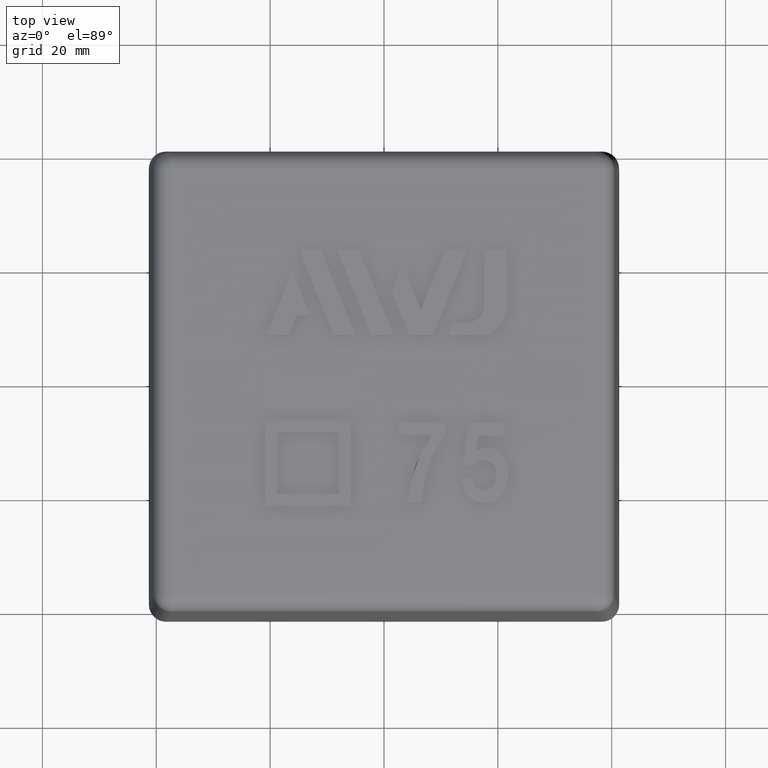
[diagram: clean part render]
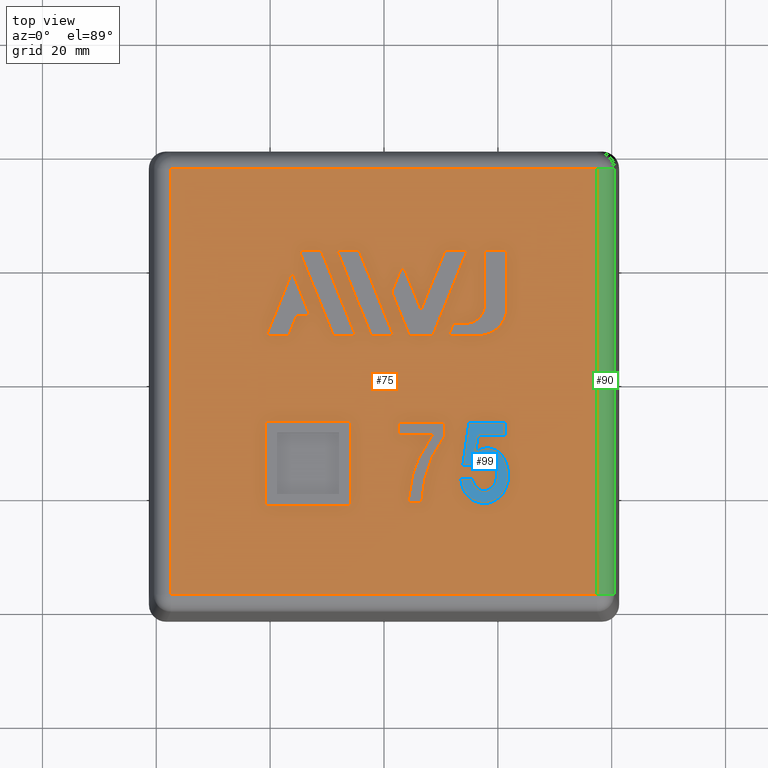
[diagram: same view with three faces highlighted in distinct colors, each labeled with its STEP entity id]
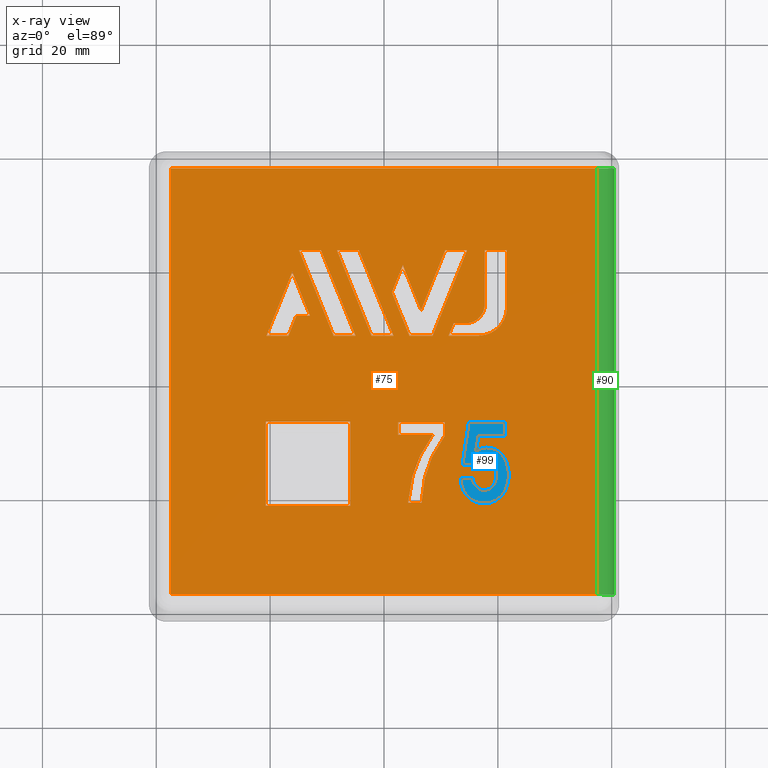
[diagram: x-ray of the same camera — body ghosted, the three highlighted faces saturated]
A machine part, top view with three faces highlighted in distinct colors.
The next image is the same camera in x-ray (body ghosted, the three faces saturated) — at least one of them is partly hidden behind the body in this view.
Their STEP definitions:

[orange] entity #75 — the highlighted planar face has unit normal (0, 0, 1).
#75 = ADVANCED_FACE( '', ( #161, #162, #163, #164, #165, #166, #167, #168, #169 ), #170, .T. );
#161 = FACE_BOUND( '', #341, .T. );
#162 = FACE_OUTER_BOUND( '', #342, .T. );
#163 = FACE_BOUND( '', #343, .T. );
#164 = FACE_BOUND( '', #344, .T. );
#165 = FACE_BOUND( '', #345, .T. );
#166 = FACE_BOUND( '', #346, .T. );
#167 = FACE_BOUND( '', #347, .T. );
#168 = FACE_BOUND( '', #348, .T. );
#169 = FACE_BOUND( '', #349, .T. );
#170 = PLANE( '', #350 );
#341 = EDGE_LOOP( '', ( #526, #527, #528, #529, #530, #531, #532 ) );
#342 = EDGE_LOOP( '', ( #533, #534, #535, #536 ) );
#343 = EDGE_LOOP( '', ( #537, #538, #539, #540, #541, #542, #543, #544 ) );
#344 = EDGE_LOOP( '', ( #545, #546, #547, #548, #549, #550, #551 ) );
#345 = EDGE_LOOP( '', ( #552, #553, #554, #555 ) );
#346 = EDGE_LOOP( '', ( #556, #557, #558, #559 ) );
#347 = EDGE_LOOP( '', ( #560, #561, #562, #563, #564 ) );
#348 = EDGE_LOOP( '', ( #565, #566, #567, #568 ) );
#349 = EDGE_LOOP( '', ( #569, #570, #571, #572, #573, #574, #575, #576, #577, #578 ) );
#350 = AXIS2_PLACEMENT_3D( '', #579, #580, #581 );
#526 = ORIENTED_EDGE( '', *, *, #1224, .T. );
#527 = ORIENTED_EDGE( '', *, *, #1225, .T. );
#528 = ORIENTED_EDGE( '', *, *, #1226, .T. );
#529 = ORIENTED_EDGE( '', *, *, #1227, .T. );
#530 = ORIENTED_EDGE( '', *, *, #1228, .T. );
#531 = ORIENTED_EDGE( '', *, *, #1229, .T. );
#532 = ORIENTED_EDGE( '', *, *, #1230, .T. );
#533 = ORIENTED_EDGE( '', *, *, #1231, .T. );
#534 = ORIENTED_EDGE( '', *, *, #1232, .T. );
#535 = ORIENTED_EDGE( '', *, *, #1233, .T. );
#536 = ORIENTED_EDGE( '', *, *, #1234, .T. );
#537 = ORIENTED_EDGE( '', *, *, #1235, .F. );
#538 = ORIENTED_EDGE( '', *, *, #1236, .F. );
#539 = ORIENTED_EDGE( '', *, *, #1237, .F. );
#540 = ORIENTED_EDGE( '', *, *, #1238, .F. );
#541 = ORIENTED_EDGE( '', *, *, #1239, .F. );
#542 = ORIENTED_EDGE( '', *, *, #1240, .F. );
#543 = ORIENTED_EDGE( '', *, *, #1241, .F. );
#544 = ORIENTED_EDGE( '', *, *, #1242, .F. );
#545 = ORIENTED_EDGE( '', *, *, #1243, .F. );
#546 = ORIENTED_EDGE( '', *, *, #1244, .F. );
#547 = ORIENTED_EDGE( '', *, *, #1245, .F. );
#548 = ORIENTED_EDGE( '', *, *, #1246, .F. );
#549 = ORIENTED_EDGE( '', *, *, #1247, .F. );
#550 = ORIENTED_EDGE( '', *, *, #1248, .F. );
#551 = ORIENTED_EDGE( '', *, *, #1249, .F. );
#552 = ORIENTED_EDGE( '', *, *, #1250, .F. );
#553 = ORIENTED_EDGE( '', *, *, #1251, .F. );
#554 = ORIENTED_EDGE( '', *, *, #1252, .F. );
#555 = ORIENTED_EDGE( '', *, *, #1253, .F. );
#556 = ORIENTED_EDGE( '', *, *, #1254, .F. );
#557 = ORIENTED_EDGE( '', *, *, #1255, .F. );
#558 = ORIENTED_EDGE( '', *, *, #1256, .F. );
#559 = ORIENTED_EDGE( '', *, *, #1257, .F. );
#560 = ORIENTED_EDGE( '', *, *, #1258, .F. );
#561 = ORIENTED_EDGE( '', *, *, #1259, .F. );
#562 = ORIENTED_EDGE( '', *, *, #1260, .F. );
#563 = ORIENTED_EDGE( '', *, *, #1261, .F. );
#564 = ORIENTED_EDGE( '', *, *, #1262, .F. );
#565 = ORIENTED_EDGE( '', *, *, #1263, .T. );
#566 = ORIENTED_EDGE( '', *, *, #1264, .T. );
#567 = ORIENTED_EDGE( '', *, *, #1265, .T. );
#568 = ORIENTED_EDGE( '', *, *, #1266, .T. );
#569 = ORIENTED_EDGE( '', *, *, #1267, .T. );
#570 = ORIENTED_EDGE( '', *, *, #1268, .T. );
#571 = ORIENTED_EDGE( '', *, *, #1269, .T. );
#572 = ORIENTED_EDGE( '', *, *, #1270, .T. );
#573 = ORIENTED_EDGE( '', *, *, #1271, .T. );
#574 = ORIENTED_EDGE( '', *, *, #1272, .T. );
#575 = ORIENTED_EDGE( '', *, *, #1273, .T. );
#576 = ORIENTED_EDGE( '', *, *, #1274, .T. );
#577 = ORIENTED_EDGE( '', *, *, #1275, .T. );
#578 = ORIENTED_EDGE( '', *, *, #1276, .T. );
#579 = CARTESIAN_POINT( '', ( -41.3000000000000, -41.3000000000000, 53.0000000000000 ) );
#580 = DIRECTION( '', ( 0.000000000000000, 0.000000000000000, 1.00000000000000 ) );
#581 = DIRECTION( '', ( 0.000000000000000, -1.00000000000000, 0.000000000000000 ) );
#1224 = EDGE_CURVE( '', #1431, #1432, #1433, .T. );
#1225 = EDGE_CURVE( '', #1432, #1434, #1435, .T. );
#1226 = EDGE_CURVE( '', #1434, #1436, #1437, .T. );
#1227 = EDGE_CURVE( '', #1436, #1438, #1439, .T. );
#1228 = EDGE_CURVE( '', #1438, #1440, #1441, .T. );
#1229 = EDGE_CURVE( '', #1440, #1442, #1443, .T. );
#1230 = EDGE_CURVE( '', #1442, #1431, #1444, .T. );
#1231 = EDGE_CURVE( '', #1445, #1446, #1447, .F. );
#1232 = EDGE_CURVE( '', #1446, #1448, #1449, .F. );
#1233 = EDGE_CURVE( '', #1448, #1450, #1451, .F. );
#1234 = EDGE_CURVE( '', #1450, #1445, #1452, .F. );
#1235 = EDGE_CURVE( '', #1453, #1454, #1455, .T. );
#1236 = EDGE_CURVE( '', #1456, #1453, #1457, .T. );
#1237 = EDGE_CURVE( '', #1458, #1456, #1459, .T. );
#1238 = EDGE_CURVE( '', #1460, #1458, #1461, .T. );
#1239 = EDGE_CURVE( '', #1462, #1460, #1463, .T. );
#1240 = EDGE_CURVE( '', #1464, #1462, #1465, .T. );
#1241 = EDGE_CURVE( '', #1466, #1464, #1467, .T. );
#1242 = EDGE_CURVE( '', #1454, #1466, #1468, .T. );
#1243 = EDGE_CURVE( '', #1469, #1470, #1471, .T. );
#1244 = EDGE_CURVE( '', #1472, #1469, #1473, .T. );
#1245 = EDGE_CURVE( '', #1474, #1472, #1475, .T. );
#1246 = EDGE_CURVE( '', #1476, #1474, #1477, .T. );
#1247 = EDGE_CURVE( '', #1478, #1476, #1479, .T. );
#1248 = EDGE_CURVE( '', #1480, #1478, #1481, .T. );
#1249 = EDGE_CURVE( '', #1470, #1480, #1482, .T. );
#1250 = EDGE_CURVE( '', #1483, #1484, #1485, .T. );
#1251 = EDGE_CURVE( '', #1486, #1483, #1487, .T. );
#1252 = EDGE_CURVE( '', #1488, #1486, #1489, .T. );
#1253 = EDGE_CURVE( '', #1484, #1488, #1490, .T. );
#1254 = EDGE_CURVE( '', #1491, #1492, #1493, .T. );
#1255 = EDGE_CURVE( '', #1494, #1491, #1495, .T. );
#1256 = EDGE_CURVE( '', #1496, #1494, #1497, .T. );
#1257 = EDGE_CURVE( '', #1492, #1496, #1498, .T. );
#1258 = EDGE_CURVE( '', #1499, #1500, #1501, .T. );
#1259 = EDGE_CURVE( '', #1502, #1499, #1503, .T. );
#1260 = EDGE_CURVE( '', #1504, #1502, #1505, .T. );
#1261 = EDGE_CURVE( '', #1506, #1504, #1507, .T. );
#1262 = EDGE_CURVE( '', #1500, #1506, #1508, .T. );
#1263 = EDGE_CURVE( '', #1509, #1510, #1511, .T. );
#1264 = EDGE_CURVE( '', #1510, #1512, #1513, .T. );
#1265 = EDGE_CURVE( '', #1512, #1514, #1515, .T. );
#1266 = EDGE_CURVE( '', #1514, #1509, #1516, .T. );
#1267 = EDGE_CURVE( '', #1517, #1518, #1519, .T. );
#1268 = EDGE_CURVE( '', #1518, #1520, #1521, .T. );
#1269 = EDGE_CURVE( '', #1520, #1522, #1523, .T. );
#1270 = EDGE_CURVE( '', #1522, #1524, #1525, .T. );
#1271 = EDGE_CURVE( '', #1524, #1526, #1527, .T. );
#1272 = EDGE_CURVE( '', #1526, #1528, #1529, .T. );
#1273 = EDGE_CURVE( '', #1528, #1530, #1531, .T. );
#1274 = EDGE_CURVE( '', #1530, #1532, #1533, .T. );
#1275 = EDGE_CURVE( '', #1532, #1534, #1535, .T. );
#1276 = EDGE_CURVE( '', #1534, #1517, #1536, .T. );
#1431 = VERTEX_POINT( '', #1772 );
#1432 = VERTEX_POINT( '', #1773 );
#1433 = B_SPLINE_CURVE_WITH_KNOTS( '', 2, ( #1774, #1775, #1776 ), .UNSPECIFIED., .F., .F., ( 3, 3 ), ( 8.00000000000000, 9.00000000000000 ), .UNSPECIFIED. );
#1434 = VERTEX_POINT( '', #1777 );
#1435 = B_SPLINE_CURVE_WITH_KNOTS( '', 2, ( #1778, #1779, #1780 ), .UNSPECIFIED., .F., .F., ( 3, 3 ), ( 0.000000000000000, 1.00000000000000 ), .UNSPECIFIED. );
#1436 = VERTEX_POINT( '', #1781 );
#1437 = B_SPLINE_CURVE_WITH_KNOTS( '', 2, ( #1782, #1783, #1784 ), .UNSPECIFIED., .F., .F., ( 3, 3 ), ( 1.00000000000000, 2.00000000000000 ), .UNSPECIFIED. );
#1438 = VERTEX_POINT( '', #1785 );
#1439 = B_SPLINE_CURVE_WITH_KNOTS( '', 2, ( #1786, #1787, #1788 ), .UNSPECIFIED., .F., .F., ( 3, 3 ), ( 2.00000000000000, 3.00000000000000 ), .UNSPECIFIED. );
#1440 = VERTEX_POINT( '', #1789 );
#1441 = B_SPLINE_CURVE_WITH_KNOTS( '', 2, ( #1790, #1791, #1792, #1793, #1794 ), .UNSPECIFIED., .F., .F., ( 3, 2, 3 ), ( 3.00000000000000, 4.00000000000000, 5.00000000000000 ), .UNSPECIFIED. );
#1442 = VERTEX_POINT( '', #1795 );
#1443 = B_SPLINE_CURVE_WITH_KNOTS( '', 2, ( #1796, #1797, #1798 ), .UNSPECIFIED., .F., .F., ( 3, 3 ), ( 5.00000000000000, 6.00000000000000 ), .UNSPECIFIED. );
#1444 = B_SPLINE_CURVE_WITH_KNOTS( '', 2, ( #1799, #1800, #1801, #1802, #1803 ), .UNSPECIFIED., .F., .F., ( 3, 2, 3 ), ( 6.00000000000000, 7.00000000000000, 8.00000000000000 ), .UNSPECIFIED. );
#1445 = VERTEX_POINT( '', #1804 );
#1446 = VERTEX_POINT( '', #1805 );
#1447 = LINE( '', #1806, #1807 );
#1448 = VERTEX_POINT( '', #1808 );
#1449 = LINE( '', #1809, #1810 );
#1450 = VERTEX_POINT( '', #1811 );
#1451 = LINE( '', #1812, #1813 );
#1452 = LINE( '', #1814, #1815 );
#1453 = VERTEX_POINT( '', #1816 );
#1454 = VERTEX_POINT( '', #1817 );
#1455 = LINE( '', #1818, #1819 );
#1456 = VERTEX_POINT( '', #1820 );
#1457 = LINE( '', #1821, #1822 );
#1458 = VERTEX_POINT( '', #1823 );
#1459 = LINE( '', #1824, #1825 );
#1460 = VERTEX_POINT( '', #1826 );
#1461 = CIRCLE( '', #1827, 5.00250000000000 );
#1462 = VERTEX_POINT( '', #1828 );
#1463 = LINE( '', #1829, #1830 );
#1464 = VERTEX_POINT( '', #1831 );
#1465 = LINE( '', #1832, #1833 );
#1466 = VERTEX_POINT( '', #1834 );
#1467 = LINE( '', #1835, #1836 );
#1468 = CIRCLE( '', #1837, 3.33500000000000 );
#1469 = VERTEX_POINT( '', #1838 );
#1470 = VERTEX_POINT( '', #1839 );
#1471 = LINE( '', #1840, #1841 );
#1472 = VERTEX_POINT( '', #1842 );
#1473 = LINE( '', #1843, #1844 );
#1474 = VERTEX_POINT( '', #1845 );
#1475 = LINE( '', #1846, #1847 );
#1476 = VERTEX_POINT( '', #1848 );
#1477 = LINE( '', #1849, #1850 );
#1478 = VERTEX_POINT( '', #1851 );
#1479 = LINE( '', #1852, #1853 );
#1480 = VERTEX_POINT( '', #1854 );
#1481 = LINE( '', #1855, #1856 );
#1482 = LINE( '', #1857, #1858 );
#1483 = VERTEX_POINT( '', #1859 );
#1484 = VERTEX_POINT( '', #1860 );
#1485 = LINE( '', #1861, #1862 );
#1486 = VERTEX_POINT( '', #1863 );
#1487 = LINE( '', #1864, #1865 );
#1488 = VERTEX_POINT( '', #1866 );
#1489 = LINE( '', #1867, #1868 );
#1490 = LINE( '', #1869, #1870 );
#1491 = VERTEX_POINT( '', #1871 );
#1492 = VERTEX_POINT( '', #1872 );
#1493 = LINE( '', #1873, #1874 );
#1494 = VERTEX_POINT( '', #1875 );
#1495 = LINE( '', #1876, #1877 );
#1496 = VERTEX_POINT( '', #1878 );
#1497 = LINE( '', #1879, #1880 );
#1498 = LINE( '', #1881, #1882 );
#1499 = VERTEX_POINT( '', #1883 );
#1500 = VERTEX_POINT( '', #1884 );
#1501 = LINE( '', #1885, #1886 );
#1502 = VERTEX_POINT( '', #1887 );
#1503 = LINE( '', #1888, #1889 );
#1504 = VERTEX_POINT( '', #1890 );
#1505 = LINE( '', #1891, #1892 );
#1506 = VERTEX_POINT( '', #1893 );
#1507 = LINE( '', #1894, #1895 );
#1508 = LINE( '', #1896, #1897 );
#1509 = VERTEX_POINT( '', #1898 );
#1510 = VERTEX_POINT( '', #1899 );
#1511 = B_SPLINE_CURVE_WITH_KNOTS( '', 2, ( #1900, #1901, #1902 ), .UNSPECIFIED., .F., .F., ( 3, 3 ), ( 3.00000000000000, 4.00000000000000 ), .UNSPECIFIED. );
#1512 = VERTEX_POINT( '', #1903 );
#1513 = B_SPLINE_CURVE_WITH_KNOTS( '', 2, ( #1904, #1905, #1906 ), .UNSPECIFIED., .F., .F., ( 3, 3 ), ( 0.000000000000000, 1.00000000000000 ), .UNSPECIFIED. );
#1514 = VERTEX_POINT( '', #1907 );
#1515 = B_SPLINE_CURVE_WITH_KNOTS( '', 2, ( #1908, #1909, #1910 ), .UNSPECIFIED., .F., .F., ( 3, 3 ), ( 1.00000000000000, 2.00000000000000 ), .UNSPECIFIED. );
#1516 = B_SPLINE_CURVE_WITH_KNOTS( '', 2, ( #1911, #1912, #1913 ), .UNSPECIFIED., .F., .F., ( 3, 3 ), ( 2.00000000000000, 3.00000000000000 ), .UNSPECIFIED. );
#1517 = VERTEX_POINT( '', #1914 );
#1518 = VERTEX_POINT( '', #1915 );
#1519 = B_SPLINE_CURVE_WITH_KNOTS( '', 2, ( #1916, #1917, #1918, #1919, #1920, #1921, #1922, #1923, #1924, #1925, #1926, #1927, #1928 ), .UNSPECIFIED., .F., .F., ( 3, 2, 2, 2, 2, 2, 3 ), ( 14.0000000000000, 15.0000000000000, 16.0000000000000, 17.0000000000000, 18.0000000000000, 19.0000000000000, 20.0000000000000 ), .UNSPECIFIED. );
#1520 = VERTEX_POINT( '', #1929 );
#1521 = B_SPLINE_CURVE_WITH_KNOTS( '', 2, ( #1930, #1931, #1932 ), .UNSPECIFIED., .F., .F., ( 3, 3 ), ( 0.000000000000000, 1.00000000000000 ), .UNSPECIFIED. );
#1522 = VERTEX_POINT( '', #1933 );
#1523 = B_SPLINE_CURVE_WITH_KNOTS( '', 2, ( #1934, #1935, #1936 ), .UNSPECIFIED., .F., .F., ( 3, 3 ), ( 1.00000000000000, 2.00000000000000 ), .UNSPECIFIED. );
#1524 = VERTEX_POINT( '', #1937 );
#1525 = B_SPLINE_CURVE_WITH_KNOTS( '', 2, ( #1938, #1939, #1940, #1941, #1942, #1943, #1944, #1945, #1946, #1947, #1948, #1949, #1950 ), .UNSPECIFIED., .F., .F., ( 3, 2, 2, 2, 2, 2, 3 ), ( 2.00000000000000, 3.00000000000000, 4.00000000000000, 5.00000000000000, 6.00000000000000, 7.00000000000000, 8.00000000000000 ), .UNSPECIFIED. );
#1526 = VERTEX_POINT( '', #1951 );
#1527 = B_SPLINE_CURVE_WITH_KNOTS( '', 2, ( #1952, #1953, #1954 ), .UNSPECIFIED., .F., .F., ( 3, 3 ), ( 8.00000000000000, 9.00000000000000 ), .UNSPECIFIED. );
#1528 = VERTEX_POINT( '', #1955 );
#1529 = B_SPLINE_CURVE_WITH_KNOTS( '', 2, ( #1956, #1957, #1958 ), .UNSPECIFIED., .F., .F., ( 3, 3 ), ( 9.00000000000000, 10.0000000000000 ), .UNSPECIFIED. );
#1530 = VERTEX_POINT( '', #1959 );
#1531 = B_SPLINE_CURVE_WITH_KNOTS( '', 2, ( #1960, #1961, #1962 ), .UNSPECIFIED., .F., .F., ( 3, 3 ), ( 10.0000000000000, 11.0000000000000 ), .UNSPECIFIED. );
#1532 = VERTEX_POINT( '', #1963 );
#1533 = B_SPLINE_CURVE_WITH_KNOTS( '', 2, ( #1964, #1965, #1966 ), .UNSPECIFIED., .F., .F., ( 3, 3 ), ( 11.0000000000000, 12.0000000000000 ), .UNSPECIFIED. );
#1534 = VERTEX_POINT( '', #1967 );
#1535 = B_SPLINE_CURVE_WITH_KNOTS( '', 2, ( #1968, #1969, #1970 ), .UNSPECIFIED., .F., .F., ( 3, 3 ), ( 12.0000000000000, 13.0000000000000 ), .UNSPECIFIED. );
#1536 = B_SPLINE_CURVE_WITH_KNOTS( '', 2, ( #1971, #1972, #1973 ), .UNSPECIFIED., .F., .F., ( 3, 3 ), ( 13.0000000000000, 14.0000000000000 ), .UNSPECIFIED. );
#1772 = CARTESIAN_POINT( '', ( 8.51023806818178, -9.42264545454547, 53.0000000000000 ) );
#1773 = CARTESIAN_POINT( '', ( 2.51023806818178, -9.42264545454547, 53.0000000000000 ) );
#1774 = CARTESIAN_POINT( '', ( 8.51023806818178, -9.42264545454547, 53.0000000000000 ) );
#1775 = CARTESIAN_POINT( '', ( 5.51023806818178, -9.42264545454547, 53.0000000000000 ) );
#1776 = CARTESIAN_POINT( '', ( 2.51023806818178, -9.42264545454547, 53.0000000000000 ) );
#1777 = CARTESIAN_POINT( '', ( 2.51023806818178, -7.17264545454547, 53.0000000000000 ) );
#1778 = CARTESIAN_POINT( '', ( 2.51023806818178, -9.42264545454547, 53.0000000000000 ) );
#1779 = CARTESIAN_POINT( '', ( 2.51023806818178, -8.29764545454547, 53.0000000000000 ) );
#1780 = CARTESIAN_POINT( '', ( 2.51023806818178, -7.17264545454547, 53.0000000000000 ) );
#1781 = CARTESIAN_POINT( '', ( 10.6920562500000, -7.17264545454547, 53.0000000000000 ) );
#1782 = CARTESIAN_POINT( '', ( 2.51023806818178, -7.17264545454547, 53.0000000000000 ) );
#1783 = CARTESIAN_POINT( '', ( 6.60114715909087, -7.17264545454547, 53.0000000000000 ) );
#1784 = CARTESIAN_POINT( '', ( 10.6920562500000, -7.17264545454547, 53.0000000000000 ) );
#1785 = CARTESIAN_POINT( '', ( 10.6920562500000, -9.55900909090911, 53.0000000000000 ) );
#1786 = CARTESIAN_POINT( '', ( 10.6920562500000, -7.17264545454547, 53.0000000000000 ) );
#1787 = CARTESIAN_POINT( '', ( 10.6920562500000, -8.36582727272729, 53.0000000000000 ) );
#1788 = CARTESIAN_POINT( '', ( 10.6920562500000, -9.55900909090911, 53.0000000000000 ) );
#1789 = CARTESIAN_POINT( '', ( 6.60114715909087, -21.3544636363637, 53.0000000000000 ) );
#1790 = CARTESIAN_POINT( '', ( 10.6920562500000, -9.55900909090911, 53.0000000000000 ) );
#1791 = CARTESIAN_POINT( '', ( 8.57841988636359, -12.4908272727273, 53.0000000000000 ) );
#1792 = CARTESIAN_POINT( '', ( 7.69205624999996, -15.1499181818182, 53.0000000000000 ) );
#1793 = CARTESIAN_POINT( '', ( 6.80569261363632, -17.8090090909091, 53.0000000000000 ) );
#1794 = CARTESIAN_POINT( '', ( 6.60114715909087, -21.3544636363637, 53.0000000000000 ) );
#1795 = CARTESIAN_POINT( '', ( 4.21478352272723, -21.3544636363637, 53.0000000000000 ) );
#1796 = CARTESIAN_POINT( '', ( 6.60114715909087, -21.3544636363637, 53.0000000000000 ) );
#1797 = CARTESIAN_POINT( '', ( 5.40796534090905, -21.3544636363637, 53.0000000000000 ) );
#1798 = CARTESIAN_POINT( '', ( 4.21478352272723, -21.3544636363637, 53.0000000000000 ) );
#1799 = CARTESIAN_POINT( '', ( 4.21478352272723, -21.3544636363637, 53.0000000000000 ) );
#1800 = CARTESIAN_POINT( '', ( 4.62387443181814, -17.2635545454546, 53.0000000000000 ) );
#1801 = CARTESIAN_POINT( '', ( 5.58261478158968, -14.7424225145738, 53.0000000000000 ) );
#1802 = CARTESIAN_POINT( '', ( 6.46478352272723, -12.4226454545455, 53.0000000000000 ) );
#1803 = CARTESIAN_POINT( '', ( 8.51023806818178, -9.42264545454547, 53.0000000000000 ) );
#1804 = CARTESIAN_POINT( '', ( -37.4267897694574, -37.4267897694574, 53.0000000000000 ) );
#1805 = CARTESIAN_POINT( '', ( 37.4267897694574, -37.4267897694574, 53.0000000000000 ) );
#1806 = CARTESIAN_POINT( '', ( 37.3753384733353, -37.4267897694574, 53.0000000000000 ) );
#1807 = VECTOR( '', #2398, 1000.00000000000 );
#1808 = CARTESIAN_POINT( '', ( 37.4267897694574, 37.4267897694574, 53.0000000000000 ) );
#1809 = CARTESIAN_POINT( '', ( 37.4267897694574, 37.3753384733353, 53.0000000000000 ) );
#1810 = VECTOR( '', #2399, 1000.00000000000 );
#1811 = CARTESIAN_POINT( '', ( -37.4267897694574, 37.4267897694574, 53.0000000000000 ) );
#1812 = CARTESIAN_POINT( '', ( -37.3753384733353, 37.4267897694574, 53.0000000000000 ) );
#1813 = VECTOR( '', #2400, 1000.00000000000 );
#1814 = CARTESIAN_POINT( '', ( -37.4267897694574, -37.3753384733353, 53.0000000000000 ) );
#1815 = VECTOR( '', #2401, 1000.00000000000 );
#1816 = CARTESIAN_POINT( '', ( 17.6868131700000, 23.0246711800000, 53.0000000000000 ) );
#1817 = CARTESIAN_POINT( '', ( 17.6868131700000, 13.5439281775000, 53.0000000000000 ) );
#1818 = CARTESIAN_POINT( '', ( 17.6868131700000, 23.0246711800000, 53.0000000000000 ) );
#1819 = VECTOR( '', #2402, 1000.00000000000 );
#1820 = CARTESIAN_POINT( '', ( 21.6060151250000, 23.0246711800000, 53.0000000000000 ) );
#1821 = CARTESIAN_POINT( '', ( 21.6060151250000, 23.0246711800000, 53.0000000000000 ) );
#1822 = VECTOR( '', #2403, 1000.00000000000 );
#1823 = CARTESIAN_POINT( '', ( 21.6060151250000, 13.0306500000000, 53.0000000000000 ) );
#1824 = CARTESIAN_POINT( '', ( 21.6060151250000, 13.0306500000000, 53.0000000000000 ) );
#1825 = VECTOR( '', #2404, 1000.00000000000 );
#1826 = CARTESIAN_POINT( '', ( 16.6035151250000, 8.02814999999999, 53.0000000000000 ) );
#1827 = AXIS2_PLACEMENT_3D( '', #2405, #2406, #2407 );
#1828 = CARTESIAN_POINT( '', ( 11.3405799725000, 8.02814999999999, 53.0000000000000 ) );
#1829 = CARTESIAN_POINT( '', ( 11.3405799725000, 8.02814999999999, 53.0000000000000 ) );
#1830 = VECTOR( '', #2408, 1000.00000000000 );
#1831 = CARTESIAN_POINT( '', ( 12.2216702975000, 10.2089281775000, 53.0000000000000 ) );
#1832 = CARTESIAN_POINT( '', ( 12.2216702975000, 10.2089281775000, 53.0000000000000 ) );
#1833 = VECTOR( '', #2409, 1000.00000000000 );
#1834 = CARTESIAN_POINT( '', ( 14.3518131700000, 10.2089281775000, 53.0000000000000 ) );
#1835 = CARTESIAN_POINT( '', ( 14.3518131700000, 10.2089281775000, 53.0000000000000 ) );
#1836 = VECTOR( '', #2410, 1000.00000000000 );
#1837 = AXIS2_PLACEMENT_3D( '', #2411, #2412, #2413 );
#1838 = CARTESIAN_POINT( '', ( 14.6109159900000, 23.0246711800000, 53.0000000000000 ) );
#1839 = CARTESIAN_POINT( '', ( 10.7356626650000, 23.0246711800000, 53.0000000000000 ) );
#1840 = CARTESIAN_POINT( '', ( 14.6109159900000, 23.0246711800000, 53.0000000000000 ) );
#1841 = VECTOR( '', #2414, 1000.00000000000 );
#1842 = CARTESIAN_POINT( '', ( 8.55223149499995, 8.02814999999999, 53.0000000000000 ) );
#1843 = CARTESIAN_POINT( '', ( 8.55223149499995, 8.02814999999999, 53.0000000000000 ) );
#1844 = VECTOR( '', #2415, 1000.00000000000 );
#1845 = CARTESIAN_POINT( '', ( 4.45572926749997, 8.02814999999999, 53.0000000000000 ) );
#1846 = CARTESIAN_POINT( '', ( 4.45572926749997, 8.02814999999999, 53.0000000000000 ) );
#1847 = VECTOR( '', #2416, 1000.00000000000 );
#1848 = CARTESIAN_POINT( '', ( 1.36830632749998, 15.6684565775000, 53.0000000000000 ) );
#1849 = CARTESIAN_POINT( '', ( 1.36830632749998, 15.6684565775000, 53.0000000000000 ) );
#1850 = VECTOR( '', #2417, 1000.00000000000 );
#1851 = CARTESIAN_POINT( '', ( 3.30593298999998, 20.4650903625000, 53.0000000000000 ) );
#1852 = CARTESIAN_POINT( '', ( 3.30593298999998, 20.4650903625000, 53.0000000000000 ) );
#1853 = VECTOR( '', #2418, 1000.00000000000 );
#1854 = CARTESIAN_POINT( '', ( 6.50355433499998, 12.5510653275000, 53.0000000000000 ) );
#1855 = CARTESIAN_POINT( '', ( 6.50355433499998, 12.5510653275000, 53.0000000000000 ) );
#1856 = VECTOR( '', #2419, 1000.00000000000 );
#1857 = CARTESIAN_POINT( '', ( 10.7356626650000, 23.0246711800000, 53.0000000000000 ) );
#1858 = VECTOR( '', #2420, 1000.00000000000 );
#1859 = CARTESIAN_POINT( '', ( 1.66738245749997, 8.02814999999999, 53.0000000000000 ) );
#1860 = CARTESIAN_POINT( '', ( -4.39225418000003, 23.0246711800000, 53.0000000000000 ) );
#1861 = CARTESIAN_POINT( '', ( 1.66738245749997, 8.02814999999999, 53.0000000000000 ) );
#1862 = VECTOR( '', #2421, 1000.00000000000 );
#1863 = CARTESIAN_POINT( '', ( -2.20782084250003, 8.02814999999999, 53.0000000000000 ) );
#1864 = CARTESIAN_POINT( '', ( -2.20782084250003, 8.02814999999999, 53.0000000000000 ) );
#1865 = VECTOR( '', #2422, 1000.00000000000 );
#1866 = CARTESIAN_POINT( '', ( -8.26745581250001, 23.0246711800000, 53.0000000000000 ) );
#1867 = CARTESIAN_POINT( '', ( -8.26745581250001, 23.0246711800000, 53.0000000000000 ) );
#1868 = VECTOR( '', #2423, 1000.00000000000 );
#1869 = CARTESIAN_POINT( '', ( -4.39225418000003, 23.0246711800000, 53.0000000000000 ) );
#1870 = VECTOR( '', #2424, 1000.00000000000 );
#1871 = CARTESIAN_POINT( '', ( -4.99626770250003, 8.02814999999999, 53.0000000000000 ) );
#1872 = CARTESIAN_POINT( '', ( -11.0559043400000, 23.0246711800000, 53.0000000000000 ) );
#1873 = CARTESIAN_POINT( '', ( -4.99626770250003, 8.02814999999999, 53.0000000000000 ) );
#1874 = VECTOR( '', #2425, 1000.00000000000 );
#1875 = CARTESIAN_POINT( '', ( -8.87119419750004, 8.02814999999998, 53.0000000000000 ) );
#1876 = CARTESIAN_POINT( '', ( -8.87119419750004, 8.02814999999999, 53.0000000000000 ) );
#1877 = VECTOR( '', #2426, 1000.00000000000 );
#1878 = CARTESIAN_POINT( '', ( -14.9299787425000, 23.0246711800000, 53.0000000000000 ) );
#1879 = CARTESIAN_POINT( '', ( -14.9299787425000, 23.0246711800000, 53.0000000000000 ) );
#1880 = VECTOR( '', #2427, 1000.00000000000 );
#1881 = CARTESIAN_POINT( '', ( -11.0559043400000, 23.0246711800000, 53.0000000000000 ) );
#1882 = VECTOR( '', #2428, 1000.00000000000 );
#1883 = CARTESIAN_POINT( '', ( -20.6574894000000, 8.02814999999999, 53.0000000000000 ) );
#1884 = CARTESIAN_POINT( '', ( -16.7834149975000, 8.02814999999999, 53.0000000000000 ) );
#1885 = CARTESIAN_POINT( '', ( -20.6574894000000, 8.02814999999999, 53.0000000000000 ) );
#1886 = VECTOR( '', #2429, 1000.00000000000 );
#1887 = CARTESIAN_POINT( '', ( -16.1152060600000, 19.2721458550000, 53.0000000000000 ) );
#1888 = CARTESIAN_POINT( '', ( -16.1152060600000, 19.2721458550000, 53.0000000000000 ) );
#1889 = VECTOR( '', #2430, 1000.00000000000 );
#1890 = CARTESIAN_POINT( '', ( -12.9731841675000, 11.4917742800000, 53.0000000000000 ) );
#1891 = CARTESIAN_POINT( '', ( -12.9731841675000, 11.4917742800000, 53.0000000000000 ) );
#1892 = VECTOR( '', #2431, 1000.00000000000 );
#1893 = CARTESIAN_POINT( '', ( -15.3830018075000, 11.4917742800000, 53.0000000000000 ) );
#1894 = CARTESIAN_POINT( '', ( -15.3830018075000, 11.4917742800000, 53.0000000000000 ) );
#1895 = VECTOR( '', #2432, 1000.00000000000 );
#1896 = CARTESIAN_POINT( '', ( -16.7834149975000, 8.02814999999999, 53.0000000000000 ) );
#1897 = VECTOR( '', #2433, 1000.00000000000 );
#1898 = CARTESIAN_POINT( '', ( -5.87612556818186, -21.8999181818182, 53.0000000000000 ) );
#1899 = CARTESIAN_POINT( '', ( -20.8079437500000, -21.8999181818182, 53.0000000000000 ) );
#1900 = CARTESIAN_POINT( '', ( -5.87612556818186, -21.8999181818182, 53.0000000000000 ) );
#1901 = CARTESIAN_POINT( '', ( -13.3420346590910, -21.8999181818182, 53.0000000000000 ) );
#1902 = CARTESIAN_POINT( '', ( -20.8079437500000, -21.8999181818182, 53.0000000000000 ) );
#1903 = CARTESIAN_POINT( '', ( -20.8079437500000, -7.03628181818184, 53.0000000000000 ) );
#1904 = CARTESIAN_POINT( '', ( -20.8079437500000, -21.8999181818182, 53.0000000000000 ) );
#1905 = CARTESIAN_POINT( '', ( -20.8079437500000, -14.4681000000000, 53.0000000000000 ) );
#1906 = CARTESIAN_POINT( '', ( -20.8079437500000, -7.03628181818184, 53.0000000000000 ) );
#1907 = CARTESIAN_POINT( '', ( -5.87612556818186, -7.03628181818184, 53.0000000000000 ) );
#1908 = CARTESIAN_POINT( '', ( -20.8079437500000, -7.03628181818184, 53.0000000000000 ) );
#1909 = CARTESIAN_POINT( '', ( -13.3420346590910, -7.03628181818184, 53.0000000000000 ) );
#1910 = CARTESIAN_POINT( '', ( -5.87612556818186, -7.03628181818184, 53.0000000000000 ) );
#1911 = CARTESIAN_POINT( '', ( -5.87612556818186, -7.03628181818184, 53.0000000000000 ) );
#1912 = CARTESIAN_POINT( '', ( -5.87612556818186, -14.4681000000000, 53.0000000000000 ) );
#1913 = CARTESIAN_POINT( '', ( -5.87612556818186, -21.8999181818182, 53.0000000000000 ) );
#1914 = CARTESIAN_POINT( '', ( 16.0784198863636, -12.3544636363637, 53.0000000000000 ) );
#1915 = CARTESIAN_POINT( '', ( 14.5555955403946, -20.0101933844586, 53.0000000000000 ) );
#1916 = CARTESIAN_POINT( '', ( 16.0784198863636, -12.3544636363637, 53.0000000000000 ) );
#1917 = CARTESIAN_POINT( '', ( 18.1920562500000, -11.0590090909091, 53.0000000000000 ) );
#1918 = CARTESIAN_POINT( '', ( 19.9620041365084, -12.2902771858715, 53.0000000000000 ) );
#1919 = CARTESIAN_POINT( '', ( 21.3284198863636, -13.2408272727273, 53.0000000000000 ) );
#1920 = CARTESIAN_POINT( '', ( 21.7375107954545, -15.2181000000000, 53.0000000000000 ) );
#1921 = CARTESIAN_POINT( '', ( 22.1466017045454, -17.1953727272727, 53.0000000000000 ) );
#1922 = CARTESIAN_POINT( '', ( 21.3615375313311, -18.9150371066947, 53.0000000000000 ) );
#1923 = CARTESIAN_POINT( '', ( 20.7147835227272, -20.3317363636364, 53.0000000000000 ) );
#1924 = CARTESIAN_POINT( '', ( 19.4125896183657, -21.0004305307410, 53.0000000000000 ) );
#1925 = CARTESIAN_POINT( '', ( 18.1920562500000, -21.6271909090909, 53.0000000000000 ) );
#1926 = CARTESIAN_POINT( '', ( 16.8939793269230, -21.3675755244755, 53.0000000000000 ) );
#1927 = CARTESIAN_POINT( '', ( 15.4647835227272, -21.0817363636364, 53.0000000000000 ) );
#1928 = CARTESIAN_POINT( '', ( 14.5555955403946, -20.0101933844586, 53.0000000000000 ) );
#1929 = CARTESIAN_POINT( '', ( 13.4875107954545, -17.0590090909091, 53.0000000000000 ) );
#1930 = CARTESIAN_POINT( '', ( 14.5555955403946, -20.0101933844586, 53.0000000000000 ) );
#1931 = CARTESIAN_POINT( '', ( 13.5556926136363, -18.8317363636364, 53.0000000000000 ) );
#1932 = CARTESIAN_POINT( '', ( 13.4875107954545, -17.0590090909091, 53.0000000000000 ) );
#1933 = CARTESIAN_POINT( '', ( 15.4647835227272, -17.0590090909091, 53.0000000000000 ) );
#1934 = CARTESIAN_POINT( '', ( 13.4875107954545, -17.0590090909091, 53.0000000000000 ) );
#1935 = CARTESIAN_POINT( '', ( 14.4761471590909, -17.0590090909091, 53.0000000000000 ) );
#1936 = CARTESIAN_POINT( '', ( 15.4647835227272, -17.0590090909091, 53.0000000000000 ) );
#1937 = CARTESIAN_POINT( '', ( 15.9420562500000, -14.7408272727273, 53.0000000000000 ) );
#1938 = CARTESIAN_POINT( '', ( 15.4647835227272, -17.0590090909091, 53.0000000000000 ) );
#1939 = CARTESIAN_POINT( '', ( 15.6693289772727, -18.1499181818182, 53.0000000000000 ) );
#1940 = CARTESIAN_POINT( '', ( 16.4322779275018, -18.7470086646062, 53.0000000000000 ) );
#1941 = CARTESIAN_POINT( '', ( 17.2375107954545, -19.3771909090909, 53.0000000000000 ) );
#1942 = CARTESIAN_POINT( '', ( 18.0625738736715, -19.1271717944797, 53.0000000000000 ) );
#1943 = CARTESIAN_POINT( '', ( 19.4875107954545, -18.6953727272727, 53.0000000000000 ) );
#1944 = CARTESIAN_POINT( '', ( 19.7209241745283, -16.9947895368782, 53.0000000000000 ) );
#1945 = CARTESIAN_POINT( '', ( 19.9647835227272, -15.2181000000000, 53.0000000000000 ) );
#1946 = CARTESIAN_POINT( '', ( 18.7375107954545, -14.2635545454546, 53.0000000000000 ) );
#1947 = CARTESIAN_POINT( '', ( 18.1238744318181, -13.7862818181818, 53.0000000000000 ) );
#1948 = CARTESIAN_POINT( '', ( 17.3056926136363, -13.9226454545455, 53.0000000000000 ) );
#1949 = CARTESIAN_POINT( '', ( 16.4875107954545, -14.0590090909091, 53.0000000000000 ) );
#1950 = CARTESIAN_POINT( '', ( 15.9420562500000, -14.7408272727273, 53.0000000000000 ) );
#1951 = CARTESIAN_POINT( '', ( 13.8284198863636, -14.7408272727273, 53.0000000000000 ) );
#1952 = CARTESIAN_POINT( '', ( 15.9420562500000, -14.7408272727273, 53.0000000000000 ) );
#1953 = CARTESIAN_POINT( '', ( 14.8852380681818, -14.7408272727273, 53.0000000000000 ) );
#1954 = CARTESIAN_POINT( '', ( 13.8284198863636, -14.7408272727273, 53.0000000000000 ) );
#1955 = CARTESIAN_POINT( '', ( 14.9193289772727, -7.24082727272729, 53.0000000000000 ) );
#1956 = CARTESIAN_POINT( '', ( 13.8284198863636, -14.7408272727273, 53.0000000000000 ) );
#1957 = CARTESIAN_POINT( '', ( 14.3738744318181, -10.9908272727273, 53.0000000000000 ) );
#1958 = CARTESIAN_POINT( '', ( 14.9193289772727, -7.24082727272729, 53.0000000000000 ) );
#1959 = CARTESIAN_POINT( '', ( 21.2602380681818, -7.24082727272729, 53.0000000000000 ) );
#1960 = CARTESIAN_POINT( '', ( 14.9193289772727, -7.24082727272729, 53.0000000000000 ) );
#1961 = CARTESIAN_POINT( '', ( 18.0897835227272, -7.24082727272729, 53.0000000000000 ) );
#1962 = CARTESIAN_POINT( '', ( 21.2602380681818, -7.24082727272729, 53.0000000000000 ) );
#1963 = CARTESIAN_POINT( '', ( 21.2602380681818, -9.55900909090911, 53.0000000000000 ) );
#1964 = CARTESIAN_POINT( '', ( 21.2602380681818, -7.24082727272729, 53.0000000000000 ) );
#1965 = CARTESIAN_POINT( '', ( 21.2602380681818, -8.39991818181820, 53.0000000000000 ) );
#1966 = CARTESIAN_POINT( '', ( 21.2602380681818, -9.55900909090911, 53.0000000000000 ) );
#1967 = CARTESIAN_POINT( '', ( 16.5556926136363, -9.55900909090911, 53.0000000000000 ) );
#1968 = CARTESIAN_POINT( '', ( 21.2602380681818, -9.55900909090911, 53.0000000000000 ) );
#1969 = CARTESIAN_POINT( '', ( 18.9079653409091, -9.55900909090911, 53.0000000000000 ) );
#1970 = CARTESIAN_POINT( '', ( 16.5556926136363, -9.55900909090911, 53.0000000000000 ) );
#1971 = CARTESIAN_POINT( '', ( 16.5556926136363, -9.55900909090911, 53.0000000000000 ) );
#1972 = CARTESIAN_POINT( '', ( 16.3170562500000, -10.9567363636364, 53.0000000000000 ) );
#1973 = CARTESIAN_POINT( '', ( 16.0784198863636, -12.3544636363637, 53.0000000000000 ) );
#2398 = DIRECTION( '', ( -1.00000000000000, 0.000000000000000, 0.000000000000000 ) );
#2399 = DIRECTION( '', ( 0.000000000000000, -1.00000000000000, 0.000000000000000 ) );
#2400 = DIRECTION( '', ( 1.00000000000000, 0.000000000000000, 0.000000000000000 ) );
#2401 = DIRECTION( '', ( 0.000000000000000, 1.00000000000000, 0.000000000000000 ) );
#2402 = DIRECTION( '', ( -2.22044604925031E-016, -1.00000000000000, -2.71917234023173E-032 ) );
#2403 = DIRECTION( '', ( -1.00000000000000, -1.66533453693774E-016, -1.22460635382238E-016 ) );
#2404 = DIRECTION( '', ( 2.22044604925031E-016, 1.00000000000000, 2.71917234023173E-032 ) );
#2405 = CARTESIAN_POINT( '', ( 16.6035151250000, 13.0306500000000, 53.0000000000000 ) );
#2406 = DIRECTION( '', ( -1.22460635382238E-016, 6.99949108067063E-048, 1.00000000000000 ) );
#2407 = DIRECTION( '', ( 1.00000000000000, 2.89120579329468E-016, 1.22460635382238E-016 ) );
#2408 = DIRECTION( '', ( 1.00000000000000, 2.22044604925031E-016, 1.22460635382238E-016 ) );
#2409 = DIRECTION( '', ( -0.374606136016172, -0.927184039368147, -4.58745054346254E-017 ) );
#2410 = DIRECTION( '', ( -1.00000000000000, -2.77555756156289E-016, -1.22460635382238E-016 ) );
#2411 = CARTESIAN_POINT( '', ( 14.3518131700000, 13.5439281775000, 53.0000000000000 ) );
#2412 = DIRECTION( '', ( 1.22460635382238E-016, 0.000000000000000, -1.00000000000000 ) );
#2413 = DIRECTION( '', ( 1.00000000000000, 0.000000000000000, 1.22460635382238E-016 ) );
#2414 = DIRECTION( '', ( -1.00000000000000, 0.000000000000000, -1.22460635382238E-016 ) );
#2415 = DIRECTION( '', ( 0.374590469627020, 0.927190368837278, 4.58725869186557E-017 ) );
#2416 = DIRECTION( '', ( 1.00000000000000, 5.55111512312578E-017, 1.22460635382238E-016 ) );
#2417 = DIRECTION( '', ( 0.374662791989133, -0.927161146888127, 4.58814435610724E-017 ) );
#2418 = DIRECTION( '', ( -0.374550228315492, -0.927206625552694, -4.58676589420774E-017 ) );
#2419 = DIRECTION( '', ( -0.374621466961798, 0.927177845125405, -4.58763828719678E-017 ) );
#2420 = DIRECTION( '', ( -0.374644407000048, -0.927168575990139, -4.58791921236276E-017 ) );
#2421 = DIRECTION( '', ( -0.374641075834904, 0.927169922019295, -4.58787841870275E-017 ) );
#2422 = DIRECTION( '', ( 1.00000000000000, 0.000000000000000, 1.22460635382238E-016 ) );
#2423 = DIRECTION( '', ( 0.374640987210496, -0.927169957829710, 4.58787733340261E-017 ) );
#2424 = DIRECTION( '', ( -1.00000000000000, 0.000000000000000, -1.22460635382238E-016 ) );
#2425 = DIRECTION( '', ( -0.374641075834905, 0.927169922019295, -4.58787841870275E-017 ) );
#2426 = DIRECTION( '', ( 1.00000000000000, 0.000000000000000, 1.22460635382238E-016 ) );
#2427 = DIRECTION( '', ( 0.374595787424495, -0.927188220397468, 4.58732381395133E-017 ) );
#2428 = DIRECTION( '', ( -1.00000000000000, 0.000000000000000, -1.22460635382238E-016 ) );
#2429 = DIRECTION( '', ( 1.00000000000000, 0.000000000000000, 1.22460635382238E-016 ) );
#2430 = DIRECTION( '', ( -0.374565060835224, -0.927200633736574, -4.58694753418681E-017 ) );
#2431 = DIRECTION( '', ( -0.374457798873769, 0.927243957576760, -4.58563399739159E-017 ) );
#2432 = DIRECTION( '', ( 1.00000000000000, 0.000000000000000, 1.22460635382238E-016 ) );
#2433 = DIRECTION( '', ( 0.374840859640758, 0.927089170438194, 4.59032498388314E-017 ) );

[blue] entity #99 — the highlighted planar face has unit normal (0, 0, 1).
#99 = ADVANCED_FACE( '', ( #218 ), #219, .T. );
#218 = FACE_OUTER_BOUND( '', #401, .T. );
#219 = PLANE( '', #402 );
#401 = EDGE_LOOP( '', ( #767, #768, #769, #770, #771, #772, #773, #774, #775, #776 ) );
#402 = AXIS2_PLACEMENT_3D( '', #777, #778, #779 );
#767 = ORIENTED_EDGE( '', *, *, #1286, .F. );
#768 = ORIENTED_EDGE( '', *, *, #1284, .F. );
#769 = ORIENTED_EDGE( '', *, *, #1282, .F. );
#770 = ORIENTED_EDGE( '', *, *, #1332, .F. );
#771 = ORIENTED_EDGE( '', *, *, #1333, .F. );
#772 = ORIENTED_EDGE( '', *, *, #1334, .F. );
#773 = ORIENTED_EDGE( '', *, *, #1335, .F. );
#774 = ORIENTED_EDGE( '', *, *, #1336, .F. );
#775 = ORIENTED_EDGE( '', *, *, #1337, .F. );
#776 = ORIENTED_EDGE( '', *, *, #1338, .F. );
#777 = CARTESIAN_POINT( '', ( 13.7886228907804, -18.6831688006601, 53.5000000000000 ) );
#778 = DIRECTION( '', ( 0.000000000000000, 0.000000000000000, 1.00000000000000 ) );
#779 = DIRECTION( '', ( 0.000000000000000, -1.00000000000000, 0.000000000000000 ) );
#1282 = EDGE_CURVE( '', #1545, #1547, #1548, .T. );
#1284 = EDGE_CURVE( '', #1547, #1550, #1551, .T. );
#1286 = EDGE_CURVE( '', #1550, #1553, #1554, .T. );
#1332 = EDGE_CURVE( '', #1625, #1545, #1626, .T. );
#1333 = EDGE_CURVE( '', #1627, #1625, #1628, .T. );
#1334 = EDGE_CURVE( '', #1629, #1627, #1630, .T. );
#1335 = EDGE_CURVE( '', #1631, #1629, #1632, .T. );
#1336 = EDGE_CURVE( '', #1633, #1631, #1634, .T. );
#1337 = EDGE_CURVE( '', #1635, #1633, #1636, .T. );
#1338 = EDGE_CURVE( '', #1553, #1635, #1637, .T. );
#1545 = VERTEX_POINT( '', #1986 );
#1547 = VERTEX_POINT( '', #1989 );
#1548 = B_SPLINE_CURVE_WITH_KNOTS( '', 2, ( #1990, #1991, #1992 ), .UNSPECIFIED., .F., .F., ( 3, 3 ), ( 13.0000000000000, 14.0000000000000 ), .UNSPECIFIED. );
#1550 = VERTEX_POINT( '', #1995 );
#1551 = B_SPLINE_CURVE_WITH_KNOTS( '', 2, ( #1996, #1997, #1998, #1999, #2000, #2001, #2002, #2003, #2004, #2005, #2006, #2007, #2008 ), .UNSPECIFIED., .F., .F., ( 3, 2, 2, 2, 2, 2, 3 ), ( 14.0000000000000, 15.0000000000000, 16.0000000000000, 17.0000000000000, 18.0000000000000, 19.0000000000000, 20.0000000000000 ), .UNSPECIFIED. );
#1553 = VERTEX_POINT( '', #2011 );
#1554 = B_SPLINE_CURVE_WITH_KNOTS( '', 2, ( #2012, #2013, #2014 ), .UNSPECIFIED., .F., .F., ( 3, 3 ), ( 0.000000000000000, 1.00000000000000 ), .UNSPECIFIED. );
#1625 = VERTEX_POINT( '', #2130 );
#1626 = B_SPLINE_CURVE_WITH_KNOTS( '', 2, ( #2131, #2132, #2133 ), .UNSPECIFIED., .F., .F., ( 3, 3 ), ( 12.0000000000000, 13.0000000000000 ), .UNSPECIFIED. );
#1627 = VERTEX_POINT( '', #2134 );
#1628 = B_SPLINE_CURVE_WITH_KNOTS( '', 2, ( #2135, #2136, #2137 ), .UNSPECIFIED., .F., .F., ( 3, 3 ), ( 11.0000000000000, 12.0000000000000 ), .UNSPECIFIED. );
#1629 = VERTEX_POINT( '', #2138 );
#1630 = B_SPLINE_CURVE_WITH_KNOTS( '', 2, ( #2139, #2140, #2141 ), .UNSPECIFIED., .F., .F., ( 3, 3 ), ( 10.0000000000000, 11.0000000000000 ), .UNSPECIFIED. );
#1631 = VERTEX_POINT( '', #2142 );
#1632 = B_SPLINE_CURVE_WITH_KNOTS( '', 2, ( #2143, #2144, #2145 ), .UNSPECIFIED., .F., .F., ( 3, 3 ), ( 9.00000000000000, 10.0000000000000 ), .UNSPECIFIED. );
#1633 = VERTEX_POINT( '', #2146 );
#1634 = B_SPLINE_CURVE_WITH_KNOTS( '', 2, ( #2147, #2148, #2149 ), .UNSPECIFIED., .F., .F., ( 3, 3 ), ( 8.00000000000000, 9.00000000000000 ), .UNSPECIFIED. );
#1635 = VERTEX_POINT( '', #2150 );
#1636 = B_SPLINE_CURVE_WITH_KNOTS( '', 2, ( #2151, #2152, #2153, #2154, #2155, #2156, #2157, #2158, #2159, #2160, #2161, #2162, #2163 ), .UNSPECIFIED., .F., .F., ( 3, 2, 2, 2, 2, 2, 3 ), ( 2.00000000000000, 3.00000000000000, 4.00000000000000, 5.00000000000000, 6.00000000000000, 7.00000000000000, 8.00000000000000 ), .UNSPECIFIED. );
#1637 = B_SPLINE_CURVE_WITH_KNOTS( '', 2, ( #2164, #2165, #2166 ), .UNSPECIFIED., .F., .F., ( 3, 3 ), ( 1.00000000000000, 2.00000000000000 ), .UNSPECIFIED. );
#1986 = CARTESIAN_POINT( '', ( 16.5556926136363, -9.55900909090911, 53.5000000000000 ) );
#1989 = CARTESIAN_POINT( '', ( 16.0784198863636, -12.3544636363637, 53.5000000000000 ) );
#1990 = CARTESIAN_POINT( '', ( 16.5556926136363, -9.55900909090911, 53.5000000000000 ) );
#1991 = CARTESIAN_POINT( '', ( 16.3170562500000, -10.9567363636364, 53.5000000000000 ) );
#1992 = CARTESIAN_POINT( '', ( 16.0784198863636, -12.3544636363637, 53.5000000000000 ) );
#1995 = CARTESIAN_POINT( '', ( 14.5555955403946, -20.0101933844586, 53.5000000000000 ) );
#1996 = CARTESIAN_POINT( '', ( 16.0784198863636, -12.3544636363637, 53.5000000000000 ) );
#1997 = CARTESIAN_POINT( '', ( 18.1920562500000, -11.0590090909091, 53.5000000000000 ) );
#1998 = CARTESIAN_POINT( '', ( 19.9620041365084, -12.2902771858715, 53.5000000000000 ) );
#1999 = CARTESIAN_POINT( '', ( 21.3284198863636, -13.2408272727273, 53.5000000000000 ) );
#2000 = CARTESIAN_POINT( '', ( 21.7375107954545, -15.2181000000000, 53.5000000000000 ) );
#2001 = CARTESIAN_POINT( '', ( 22.1466017045454, -17.1953727272727, 53.5000000000000 ) );
#2002 = CARTESIAN_POINT( '', ( 21.3615375313311, -18.9150371066947, 53.5000000000000 ) );
#2003 = CARTESIAN_POINT( '', ( 20.7147835227272, -20.3317363636364, 53.5000000000000 ) );
#2004 = CARTESIAN_POINT( '', ( 19.4125896183657, -21.0004305307410, 53.5000000000000 ) );
#2005 = CARTESIAN_POINT( '', ( 18.1920562500000, -21.6271909090909, 53.5000000000000 ) );
#2006 = CARTESIAN_POINT( '', ( 16.8939793269230, -21.3675755244755, 53.5000000000000 ) );
#2007 = CARTESIAN_POINT( '', ( 15.4647835227272, -21.0817363636364, 53.5000000000000 ) );
#2008 = CARTESIAN_POINT( '', ( 14.5555955403946, -20.0101933844586, 53.5000000000000 ) );
#2011 = CARTESIAN_POINT( '', ( 13.4875107954545, -17.0590090909091, 53.5000000000000 ) );
#2012 = CARTESIAN_POINT( '', ( 14.5555955403946, -20.0101933844586, 53.5000000000000 ) );
#2013 = CARTESIAN_POINT( '', ( 13.5556926136363, -18.8317363636364, 53.5000000000000 ) );
#2014 = CARTESIAN_POINT( '', ( 13.4875107954545, -17.0590090909091, 53.5000000000000 ) );
#2130 = CARTESIAN_POINT( '', ( 21.2602380681818, -9.55900909090911, 53.5000000000000 ) );
#2131 = CARTESIAN_POINT( '', ( 21.2602380681818, -9.55900909090911, 53.5000000000000 ) );
#2132 = CARTESIAN_POINT( '', ( 18.9079653409091, -9.55900909090911, 53.5000000000000 ) );
#2133 = CARTESIAN_POINT( '', ( 16.5556926136363, -9.55900909090911, 53.5000000000000 ) );
#2134 = CARTESIAN_POINT( '', ( 21.2602380681818, -7.24082727272729, 53.5000000000000 ) );
#2135 = CARTESIAN_POINT( '', ( 21.2602380681818, -7.24082727272729, 53.5000000000000 ) );
#2136 = CARTESIAN_POINT( '', ( 21.2602380681818, -8.39991818181820, 53.5000000000000 ) );
#2137 = CARTESIAN_POINT( '', ( 21.2602380681818, -9.55900909090911, 53.5000000000000 ) );
#2138 = CARTESIAN_POINT( '', ( 14.9193289772727, -7.24082727272729, 53.5000000000000 ) );
#2139 = CARTESIAN_POINT( '', ( 14.9193289772727, -7.24082727272729, 53.5000000000000 ) );
#2140 = CARTESIAN_POINT( '', ( 18.0897835227272, -7.24082727272729, 53.5000000000000 ) );
#2141 = CARTESIAN_POINT( '', ( 21.2602380681818, -7.24082727272729, 53.5000000000000 ) );
#2142 = CARTESIAN_POINT( '', ( 13.8284198863636, -14.7408272727273, 53.5000000000000 ) );
#2143 = CARTESIAN_POINT( '', ( 13.8284198863636, -14.7408272727273, 53.5000000000000 ) );
#2144 = CARTESIAN_POINT( '', ( 14.3738744318181, -10.9908272727273, 53.5000000000000 ) );
#2145 = CARTESIAN_POINT( '', ( 14.9193289772727, -7.24082727272729, 53.5000000000000 ) );
#2146 = CARTESIAN_POINT( '', ( 15.9420562500000, -14.7408272727273, 53.5000000000000 ) );
#2147 = CARTESIAN_POINT( '', ( 15.9420562500000, -14.7408272727273, 53.5000000000000 ) );
#2148 = CARTESIAN_POINT( '', ( 14.8852380681818, -14.7408272727273, 53.5000000000000 ) );
#2149 = CARTESIAN_POINT( '', ( 13.8284198863636, -14.7408272727273, 53.5000000000000 ) );
#2150 = CARTESIAN_POINT( '', ( 15.4647835227272, -17.0590090909091, 53.5000000000000 ) );
#2151 = CARTESIAN_POINT( '', ( 15.4647835227272, -17.0590090909091, 53.5000000000000 ) );
#2152 = CARTESIAN_POINT( '', ( 15.6693289772727, -18.1499181818182, 53.5000000000000 ) );
#2153 = CARTESIAN_POINT( '', ( 16.4322779275018, -18.7470086646062, 53.5000000000000 ) );
#2154 = CARTESIAN_POINT( '', ( 17.2375107954545, -19.3771909090909, 53.5000000000000 ) );
#2155 = CARTESIAN_POINT( '', ( 18.0625738736715, -19.1271717944797, 53.5000000000000 ) );
#2156 = CARTESIAN_POINT( '', ( 19.4875107954545, -18.6953727272727, 53.5000000000000 ) );
#2157 = CARTESIAN_POINT( '', ( 19.7209241745283, -16.9947895368782, 53.5000000000000 ) );
#2158 = CARTESIAN_POINT( '', ( 19.9647835227272, -15.2181000000000, 53.5000000000000 ) );
#2159 = CARTESIAN_POINT( '', ( 18.7375107954545, -14.2635545454546, 53.5000000000000 ) );
#2160 = CARTESIAN_POINT( '', ( 18.1238744318181, -13.7862818181818, 53.5000000000000 ) );
#2161 = CARTESIAN_POINT( '', ( 17.3056926136363, -13.9226454545455, 53.5000000000000 ) );
#2162 = CARTESIAN_POINT( '', ( 16.4875107954545, -14.0590090909091, 53.5000000000000 ) );
#2163 = CARTESIAN_POINT( '', ( 15.9420562500000, -14.7408272727273, 53.5000000000000 ) );
#2164 = CARTESIAN_POINT( '', ( 13.4875107954545, -17.0590090909091, 53.5000000000000 ) );
#2165 = CARTESIAN_POINT( '', ( 14.4761471590909, -17.0590090909091, 53.5000000000000 ) );
#2166 = CARTESIAN_POINT( '', ( 15.4647835227272, -17.0590090909091, 53.5000000000000 ) );

[green] entity #90 — the highlighted cylindrical surface (edge-blend (fillet) strip) has radius 3 mm, axis along (0, -1, 0).
#90 = ADVANCED_FACE( '', ( #199 ), #200, .T. );
#199 = FACE_OUTER_BOUND( '', #382, .T. );
#200 = CYLINDRICAL_SURFACE( '', #383, 3.00000000000000 );
#382 = EDGE_LOOP( '', ( #696, #697, #698, #699 ) );
#383 = AXIS2_PLACEMENT_3D( '', #700, #701, #702 );
#696 = ORIENTED_EDGE( '', *, *, #1311, .T. );
#697 = ORIENTED_EDGE( '', *, *, #1312, .F. );
#698 = ORIENTED_EDGE( '', *, *, #1309, .F. );
#699 = ORIENTED_EDGE( '', *, *, #1232, .F. );
#700 = CARTESIAN_POINT( '', ( 37.4267897694574, -41.3000000000000, 50.0000000000000 ) );
#701 = DIRECTION( '', ( 0.000000000000000, -1.00000000000000, 0.000000000000000 ) );
#702 = DIRECTION( '', ( 0.000000000000000, 0.000000000000000, 1.00000000000000 ) );
#1232 = EDGE_CURVE( '', #1446, #1448, #1449, .F. );
#1309 = EDGE_CURVE( '', #1448, #1588, #1589, .T. );
#1311 = EDGE_CURVE( '', #1446, #1591, #1592, .T. );
#1312 = EDGE_CURVE( '', #1588, #1591, #1593, .F. );
#1446 = VERTEX_POINT( '', #1805 );
#1448 = VERTEX_POINT( '', #1808 );
#1449 = LINE( '', #1809, #1810 );
#1588 = VERTEX_POINT( '', #2076 );
#1589 = CIRCLE( '', #2077, 3.00000000000000 );
#1591 = VERTEX_POINT( '', #2079 );
#1592 = CIRCLE( '', #2080, 3.00000000000000 );
#1593 = LINE( '', #2081, #2082 );
#1805 = CARTESIAN_POINT( '', ( 37.4267897694574, -37.4267897694574, 53.0000000000000 ) );
#1808 = CARTESIAN_POINT( '', ( 37.4267897694574, 37.4267897694574, 53.0000000000000 ) );
#1809 = CARTESIAN_POINT( '', ( 37.4267897694574, 37.3753384733353, 53.0000000000000 ) );
#1810 = VECTOR( '', #2399, 1000.00000000000 );
#2076 = CARTESIAN_POINT( '', ( 40.4263328549266, 37.4267897694574, 50.0523572193119 ) );
#2077 = AXIS2_PLACEMENT_3D( '', #2466, #2467, #2468 );
#2079 = CARTESIAN_POINT( '', ( 40.4263328549266, -37.4267897694574, 50.0523572193119 ) );
#2080 = AXIS2_PLACEMENT_3D( '', #2472, #2473, #2474 );
#2081 = CARTESIAN_POINT( '', ( 40.4263328549266, -37.3753384733353, 50.0523572193118 ) );
#2082 = VECTOR( '', #2475, 1000.00000000000 );
#2399 = DIRECTION( '', ( 0.000000000000000, -1.00000000000000, 0.000000000000000 ) );
#2466 = CARTESIAN_POINT( '', ( 37.4267897694574, 37.4267897694574, 50.0000000000000 ) );
#2467 = DIRECTION( '', ( 0.000000000000000, 1.00000000000000, 0.000000000000000 ) );
#2468 = DIRECTION( '', ( 0.000000000000000, 0.000000000000000, 1.00000000000000 ) );
#2472 = CARTESIAN_POINT( '', ( 37.4267897694574, -37.4267897694574, 50.0000000000000 ) );
#2473 = DIRECTION( '', ( 0.000000000000000, 1.00000000000000, 0.000000000000000 ) );
#2474 = DIRECTION( '', ( 0.000000000000000, 0.000000000000000, 1.00000000000000 ) );
#2475 = DIRECTION( '', ( 0.000000000000000, 1.00000000000000, 0.000000000000000 ) );